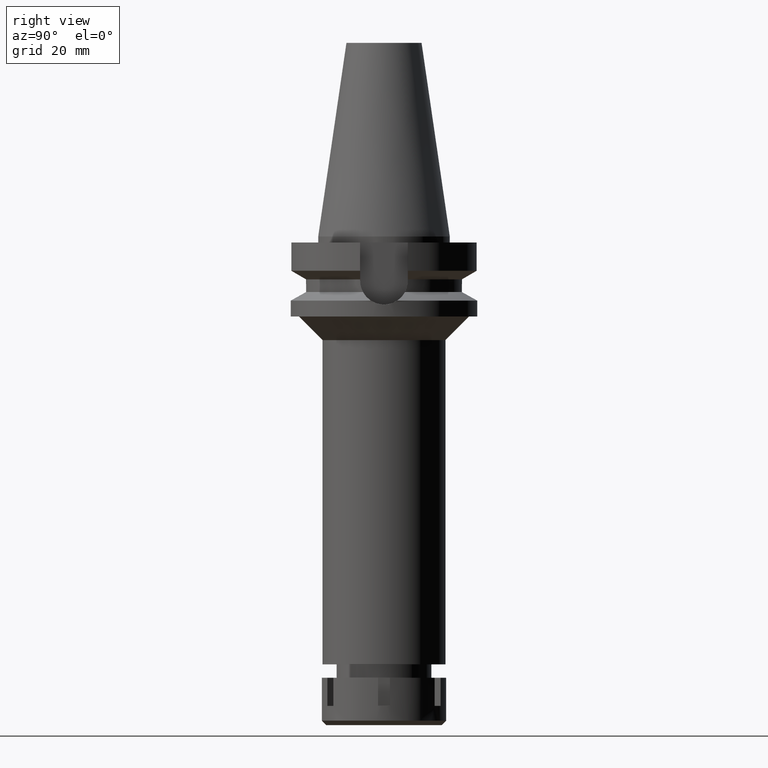
[diagram: clean part render]
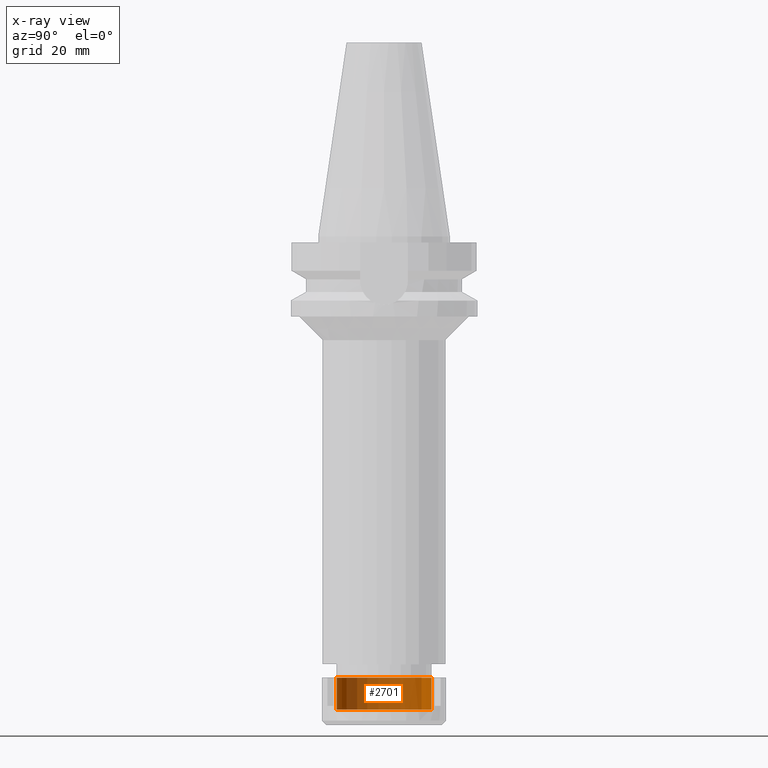
[diagram: x-ray — body ghosted, one internal face saturated and labeled with its STEP entity id]
A machine part, right view, then the same camera in x-ray: the body is ghosted and one INTERNAL B-rep face — a face not visible from any outside direction — is saturated and labeled: STEP entity #2701.
In plain terms, the highlighted cylindrical surface (partial cylindrical patch) has radius 16 mm, axis along (0, 0, -1).
Its self-contained STEP definition (entity closure, byte-faithful):
#20 = CARTESIAN_POINT ( 'NONE',  ( 0.0000000000000000000, 0.0000000000000000000, 0.0000000000000000000 ) ) ;
#77 = EDGE_CURVE ( 'NONE', #2548, #2785, #329, .T. ) ;
#222 = VECTOR ( 'NONE', #1183, 1000.000000000000000 ) ;
#252 = DIRECTION ( 'NONE',  ( 0.0000000000000000000, 0.0000000000000000000, -1.000000000000000000 ) ) ;
#320 = DIRECTION ( 'NONE',  ( 0.0000000000000000000, 0.0000000000000000000, -1.000000000000000000 ) ) ;
#329 = CIRCLE ( 'NONE', #3571, 16.00000000000000000 ) ;
#395 = EDGE_CURVE ( 'NONE', #1960, #2131, #2738, .T. ) ;
#552 = CYLINDRICAL_SURFACE ( 'NONE', #859, 16.00000000000000000 ) ;
#656 = CARTESIAN_POINT ( 'NONE',  ( 0.0000000000000000000, 0.0000000000000000000, -10.80000000000000071 ) ) ;
#671 = DIRECTION ( 'NONE',  ( 0.0000000000000000000, -1.000000000000000000, 0.0000000000000000000 ) ) ;
#704 = ORIENTED_EDGE ( 'NONE', *, *, #1936, .F. ) ;
#859 = AXIS2_PLACEMENT_3D ( 'NONE', #20, #252, #3647 ) ;
#1070 = ORIENTED_EDGE ( 'NONE', *, *, #2715, .T. ) ;
#1116 = FACE_OUTER_BOUND ( 'NONE', #2649, .T. ) ;
#1148 = AXIS2_PLACEMENT_3D ( 'NONE', #656, #320, #671 ) ;
#1183 = DIRECTION ( 'NONE',  ( 0.0000000000000000000, 0.0000000000000000000, 1.000000000000000000 ) ) ;
#1492 = CARTESIAN_POINT ( 'NONE',  ( 0.0000000000000000000, -16.00000000000000000, 0.0000000000000000000 ) ) ;
#1704 = CARTESIAN_POINT ( 'NONE',  ( 0.0000000000000000000, -16.00000000000000000, -10.80000000000000071 ) ) ;
#1714 = CARTESIAN_POINT ( 'NONE',  ( 0.0000000000000000000, 16.00000000000000000, -10.80000000000000071 ) ) ;
#1716 = LINE ( 'NONE', #3136, #222 ) ;
#1936 = EDGE_CURVE ( 'NONE', #1960, #2785, #1716, .T. ) ;
#1942 = DIRECTION ( 'NONE',  ( 0.0000000000000000000, 0.0000000000000000000, 1.000000000000000000 ) ) ;
#1960 = VERTEX_POINT ( 'NONE', #1704 ) ;
#2131 = VERTEX_POINT ( 'NONE', #2270 ) ;
#2236 = DIRECTION ( 'NONE',  ( 0.0000000000000000000, 0.0000000000000000000, 1.000000000000000000 ) ) ;
#2265 = LINE ( 'NONE', #1714, #3506 ) ;
#2270 = CARTESIAN_POINT ( 'NONE',  ( 0.0000000000000000000, 16.00000000000000000, -10.80000000000000071 ) ) ;
#2548 = VERTEX_POINT ( 'NONE', #2956 ) ;
#2595 = ORIENTED_EDGE ( 'NONE', *, *, #77, .T. ) ;
#2649 = EDGE_LOOP ( 'NONE', ( #2595, #704, #3357, #1070 ) ) ;
#2701 = ADVANCED_FACE ( 'NONE', ( #1116 ), #552, .F. ) ;
#2715 = EDGE_CURVE ( 'NONE', #2131, #2548, #2265, .T. ) ;
#2738 = CIRCLE ( 'NONE', #1148, 16.00000000000000000 ) ;
#2785 = VERTEX_POINT ( 'NONE', #1492 ) ;
#2810 = CARTESIAN_POINT ( 'NONE',  ( 0.0000000000000000000, 0.0000000000000000000, 0.0000000000000000000 ) ) ;
#2956 = CARTESIAN_POINT ( 'NONE',  ( 0.0000000000000000000, 16.00000000000000000, 0.0000000000000000000 ) ) ;
#3083 = DIRECTION ( 'NONE',  ( 0.0000000000000000000, 1.000000000000000000, 0.0000000000000000000 ) ) ;
#3136 = CARTESIAN_POINT ( 'NONE',  ( 0.0000000000000000000, -16.00000000000000000, -10.80000000000000071 ) ) ;
#3357 = ORIENTED_EDGE ( 'NONE', *, *, #395, .T. ) ;
#3506 = VECTOR ( 'NONE', #2236, 1000.000000000000000 ) ;
#3571 = AXIS2_PLACEMENT_3D ( 'NONE', #2810, #1942, #3083 ) ;
#3647 = DIRECTION ( 'NONE',  ( 0.0000000000000000000, -1.000000000000000000, 0.0000000000000000000 ) ) ;